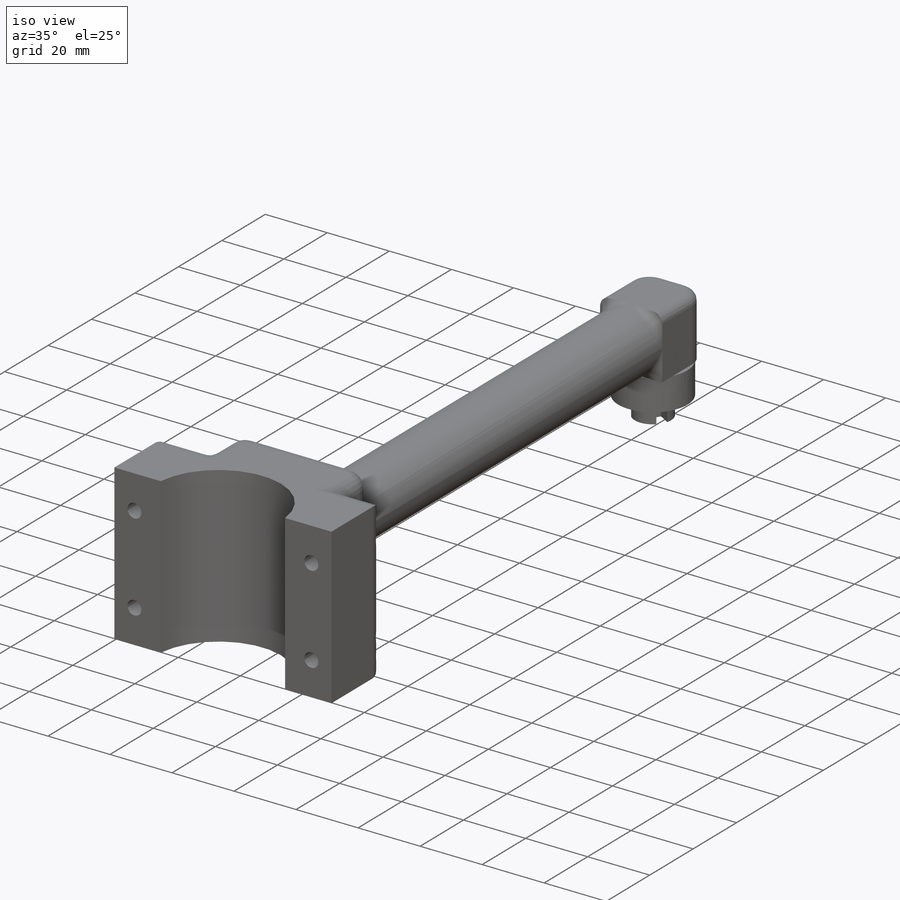
[diagram: iso view]
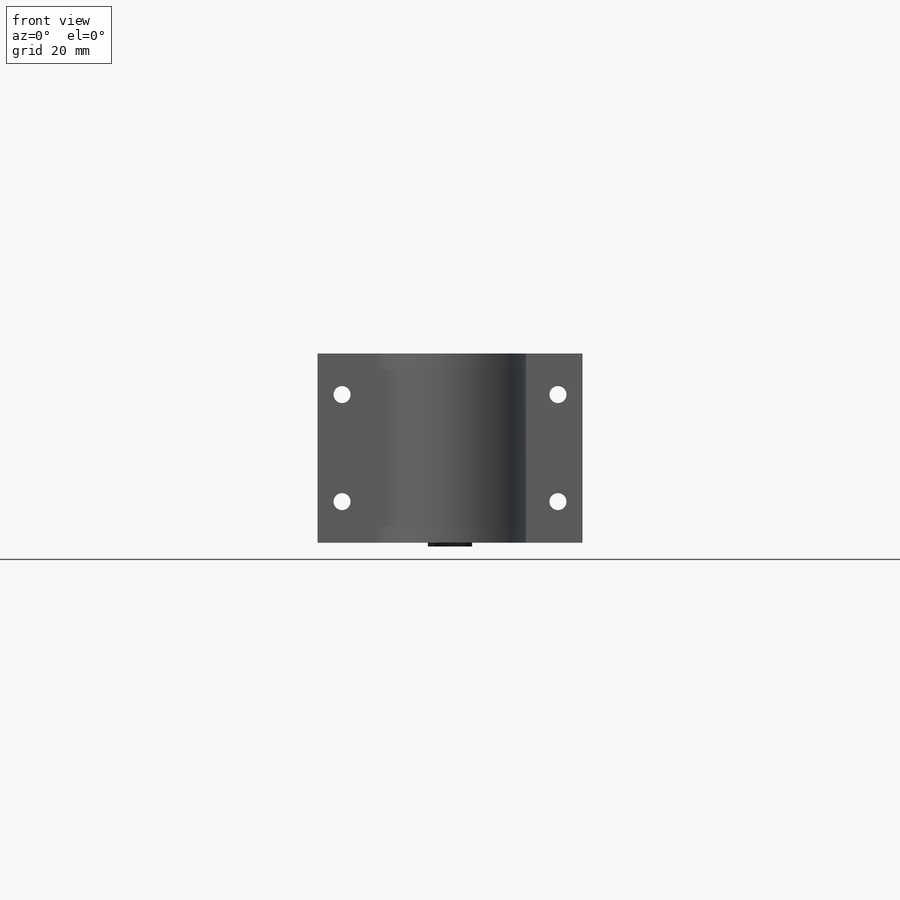
[diagram: front view]
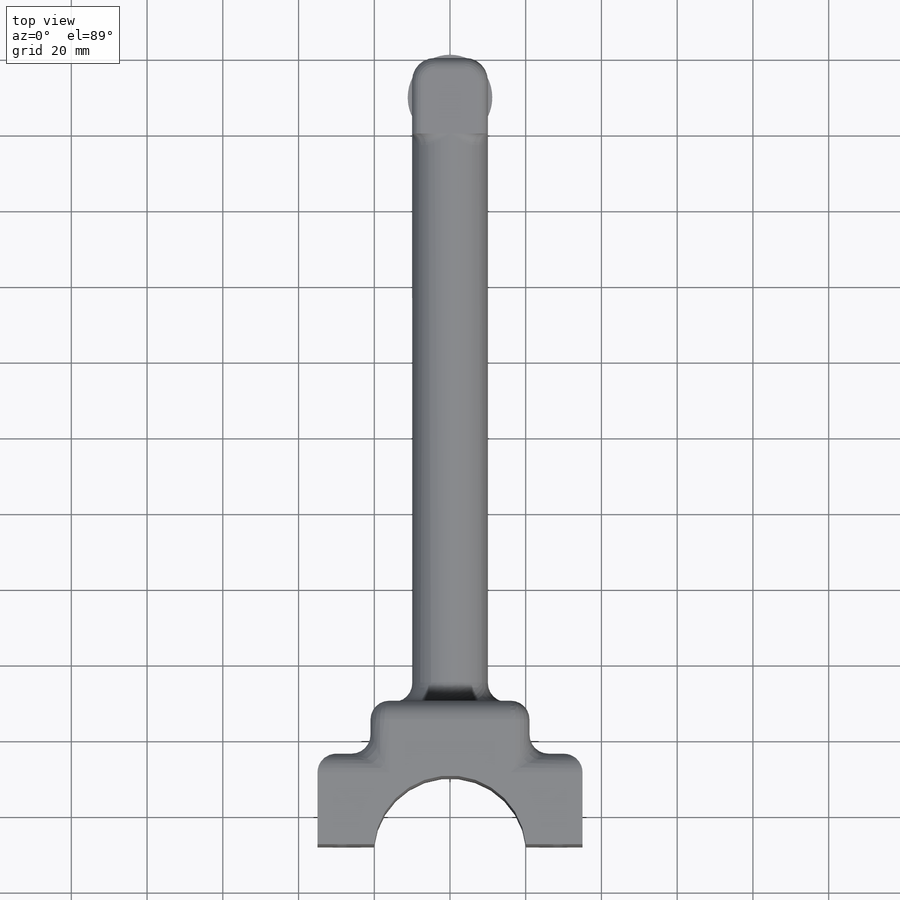
[diagram: top view]
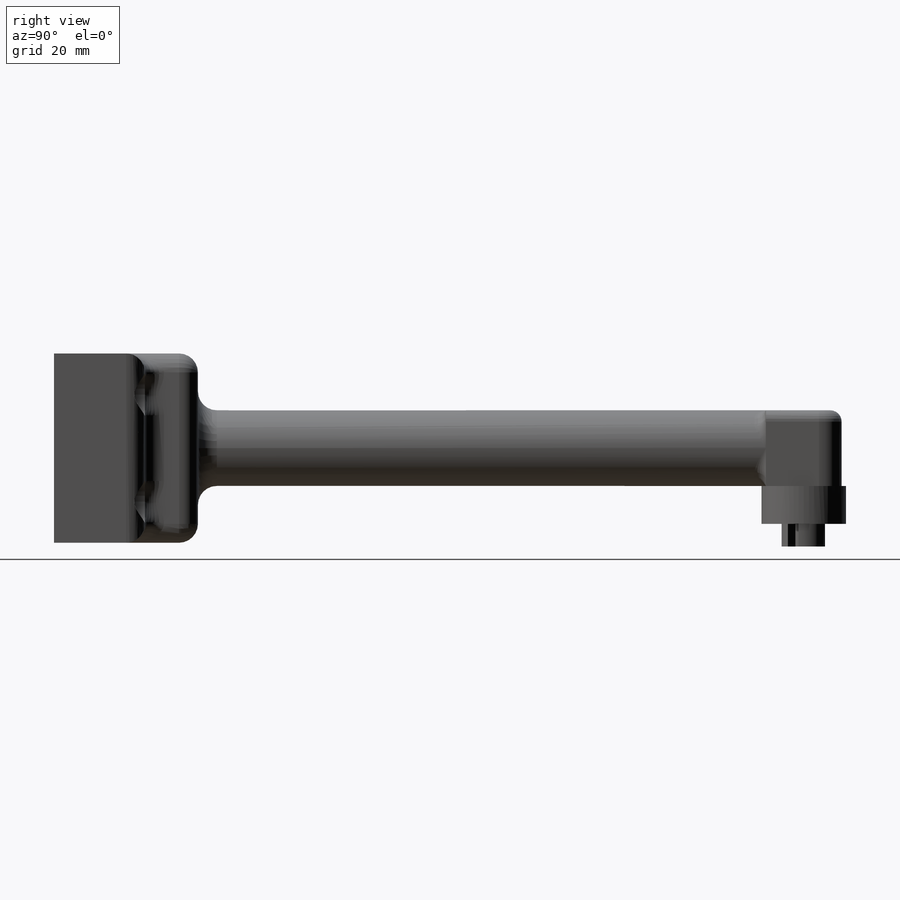
[diagram: right view]
SOLIDWORKS PART (.sldprt)
format: sldprt  version: not decoded by parser v0  size: 542,208 bytes
history: native  units: mm
features: sketch x12, fillet x9, cut_extrude x5, plane x4, extrude x4, mirror x2, material x1, hole x1, pattern_circular x1 (+8 scaffold rows collapsed)
feature tree (47):
  scaffold x8  (default folders/planes/origin — collapsed)
  material  "Matériau <non spécifié>"
  plane  "Plan de face"
  plane  "Plan de dessus"
  plane  "Plan de droite"
  sketch  "Esquisse1"  dims[D1=20.0mm]
  extrude  "Boss.-Extru.1"  Depth=150mm
  sketch  "Esquisse2"  dims[D1=70.0mm D2=50.0mm]
  extrude  "Boss.-Extru.2"  Depth=40mm
  sketch  "Esquisse3"  dims[D1=40.3mm]
  cut_extrude  "Enlèv. mat.-Extru.1"  [1 undecoded]
  sketch  "Esquisse4"  dims[D1=14.0mm D2=14.0mm]
  cut_extrude  "Enlèv. mat.-Extru.2"  Depth=14mm
  fillet  "Congé3"  Radius=5mm
  hole  "Chambrage pour vis à tête ronde bombée M41"  Diameter=4.5mm Depth=26mm
  sketch  "Esquisse6"
  sketch  "Esquisse5"  dims[hole-wizard template sketch: 42 standard entries collapsed; hole parameters kept: c12.Profondeur du perçage jusqu'au prochain=26.0mm c12.Diamètre du chambrage=12.0mm c12.Profondeur du chambrage=12.0mm]
  mirror  "Symétrie1"
  mirror  "Symétrie2"
  sketch  "Esquisse7"  dims[D1=2.0mm]
  cut_extrude  "Enlèv. mat.-Extru.3"  [1 undecoded]
  sketch  "Esquisse8"  dims[D1=~26.67698mm]
  extrude  "Boss.-Extru.3"  Depth=20mm
  sketch  "Esquisse9"  dims[D1=19.0mm D2=11.7mm]
  extrude  "Boss.-Extru.4"  Depth=16mm
  sketch  "Esquisse10"  dims[D1=4.2mm D2=3.2mm]
  cut_extrude  "Enlèv. mat.-Extru.4"  Depth=10mm
  pattern_circular  "Répétition circulaire1"  Count=3 Angle=120deg
  sketch  "Esquisse11"  dims[c1.D1=18.3mm c2.D1=10.0mm c2.D5=2.0mm c2.D6=1.0mm c2.D7=5.0mm]
  fillet  "Congé6"  Radius=3mm
  fillet  "Congé8"  Radius=3mm
  fillet  "Congé11"  Radius=2mm
  fillet  "Congé12"  Radius=5mm
  fillet  "Congé14"  Radius=5mm
  fillet  "Congé15"  Radius=5mm
  fillet  "Congé16"  Radius=5mm
  fillet  "Congé18"  Radius=6mm
  plane  "Plan1"
  sketch  "Esquisse12"  dims[D1=5.5mm]
  cut_extrude  "Enlèv. mat.-Extru.5"  Depth=6mm
decode coverage: 29 of 34 modeling features carry decoded parameters
note: ~ marks probable driven/reference dimensions
note: 2 parameter values undecoded
note: suppression state not decoded; provenance and decode notes live in map.json
